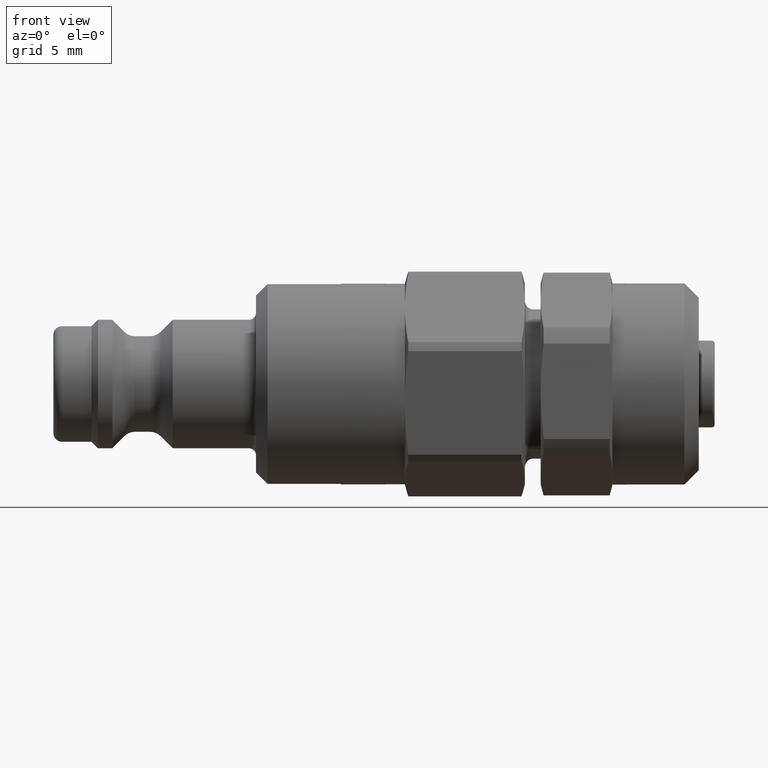
[diagram: clean part render]
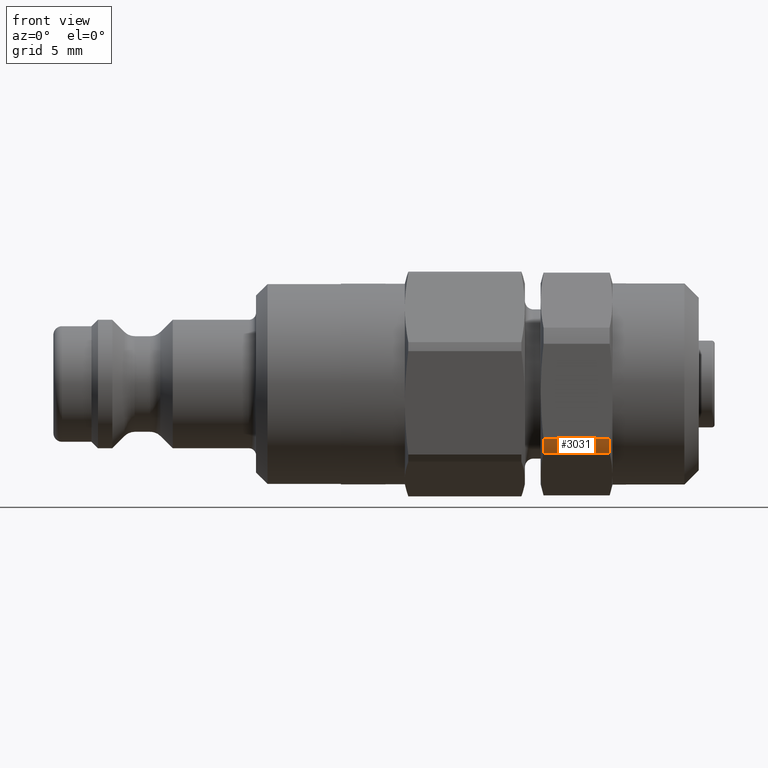
[diagram: same view with one face highlighted and labeled with its STEP entity id]
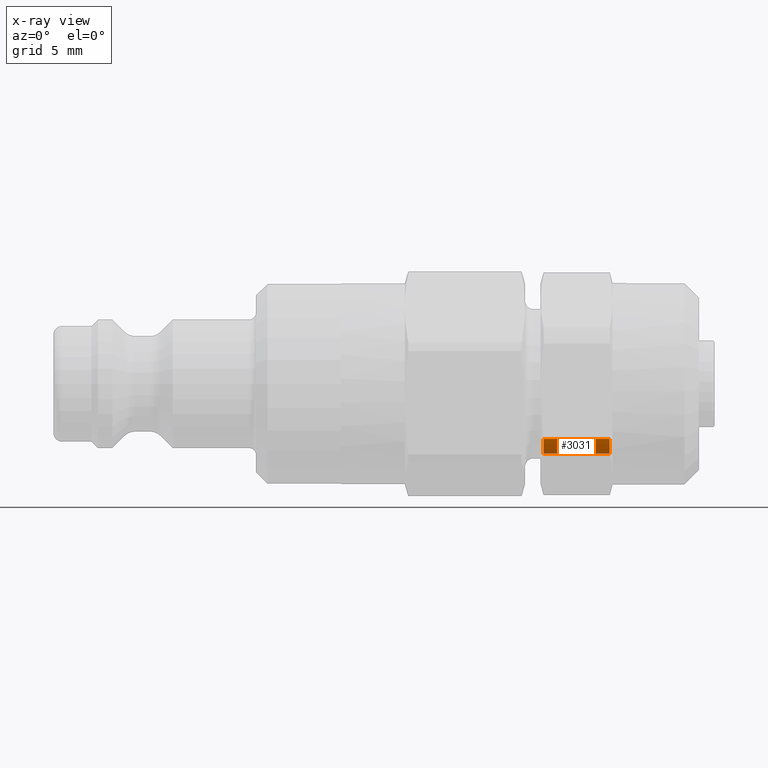
[diagram: x-ray of the same camera — body ghosted, the highlighted face saturated]
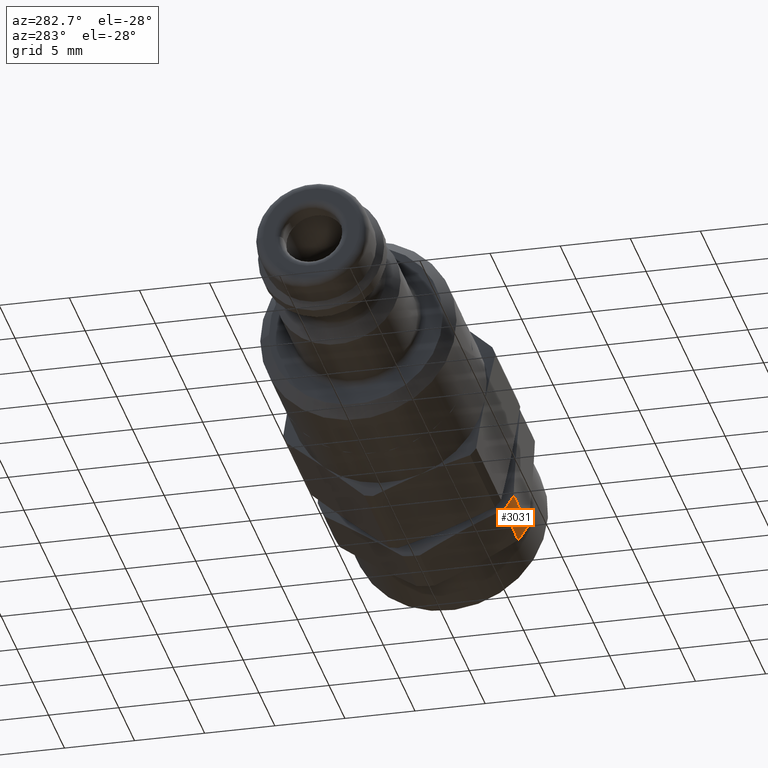
[diagram: same view with one face highlighted and labeled with its STEP entity id]
A machine part, front view. The second image highlights one B-rep face of the part: STEP entity #3031.
The next image is the same camera in x-ray: the body ghosted, the highlighted face saturated — about 0% of this face is hidden behind the body in this view.
A second angle (auxiliary view) of the same face is appended — the face is thin or edge-on in the first view.
In plain terms, the highlighted cylindrical surface (partial cylindrical patch) has radius 7.75 mm, axis along (-1, -0, -0).
Its self-contained STEP definition (entity closure, byte-faithful):
#2436=CARTESIAN_POINT('',(6.200961894323342,-7.000000000000002,3.326033673912516));
#2437=VERTEX_POINT('',#2436);
#2489=CARTESIAN_POINT('',(10.799038105676662,-7.000000000000002,3.326033673912512));
#2490=VERTEX_POINT('',#2489);
#2504=CARTESIAN_POINT('',(6.200961894323343,-7.000000000000002,3.326033673912512));
#2505=DIRECTION('',(1.0,0.0,0.0));
#2506=VECTOR('',#2505,4.598076211353319);
#2507=LINE('',#2504,#2506);
#2508=EDGE_CURVE('',#2437,#2490,#2507,.T.);
#2535=CARTESIAN_POINT('',(6.200961894323342,-6.380429655450726,4.399160989534817));
#2536=VERTEX_POINT('',#2535);
#2550=CARTESIAN_POINT('',(10.799038105676662,-6.380429655450723,4.399160989534819));
#2551=VERTEX_POINT('',#2550);
#2552=CARTESIAN_POINT('',(10.799038105676662,-6.380429655450723,4.399160989534819));
#2553=DIRECTION('',(-1.0,0.0,0.0));
#2554=VECTOR('',#2553,4.598076211353319);
#2555=LINE('',#2552,#2554);
#2556=EDGE_CURVE('',#2551,#2536,#2555,.T.);
#2783=CARTESIAN_POINT('',(10.799038105676662,0.0,0.0));
#2784=DIRECTION('',(1.0,0.0,0.0));
#2785=DIRECTION('',(0.0,1.0,0.0));
#2786=AXIS2_PLACEMENT_3D('',#2783,#2784,#2785);
#2787=CIRCLE('',#2786,7.749999999999999);
#2788=EDGE_CURVE('',#2551,#2490,#2787,.T.);
#2887=CARTESIAN_POINT('',(6.200961894323342,0.0,0.0));
#2888=DIRECTION('',(1.0,0.0,0.0));
#2889=DIRECTION('',(0.0,1.0,0.0));
#2890=AXIS2_PLACEMENT_3D('',#2887,#2888,#2889);
#2891=CIRCLE('',#2890,7.75);
#2892=EDGE_CURVE('',#2536,#2437,#2891,.T.);
#3020=CARTESIAN_POINT('',(8.500000000000002,0.0,0.0));
#3021=DIRECTION('',(1.0,0.0,0.0));
#3022=DIRECTION('',(0.0,1.0,0.0));
#3023=AXIS2_PLACEMENT_3D('',#3020,#3021,#3022);
#3024=CYLINDRICAL_SURFACE('',#3023,7.749999999999999);
#3025=ORIENTED_EDGE('',*,*,#2508,.T.);
#3026=ORIENTED_EDGE('',*,*,#2788,.F.);
#3027=ORIENTED_EDGE('',*,*,#2556,.T.);
#3028=ORIENTED_EDGE('',*,*,#2892,.T.);
#3029=EDGE_LOOP('',(#3025,#3026,#3027,#3028));
#3030=FACE_OUTER_BOUND('',#3029,.T.);
#3031=ADVANCED_FACE('',(#3030),#3024,.T.);